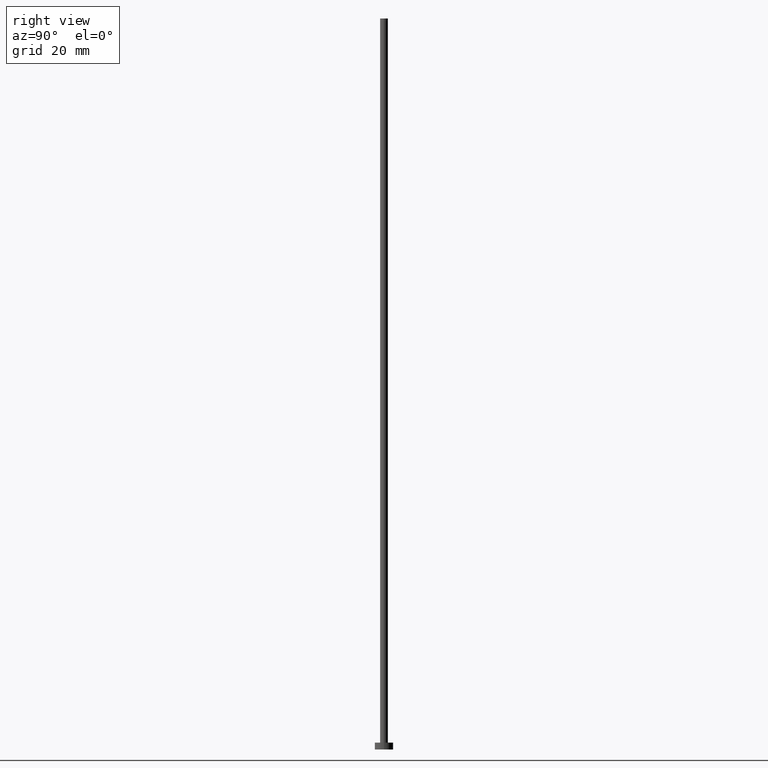
[diagram: clean part render]
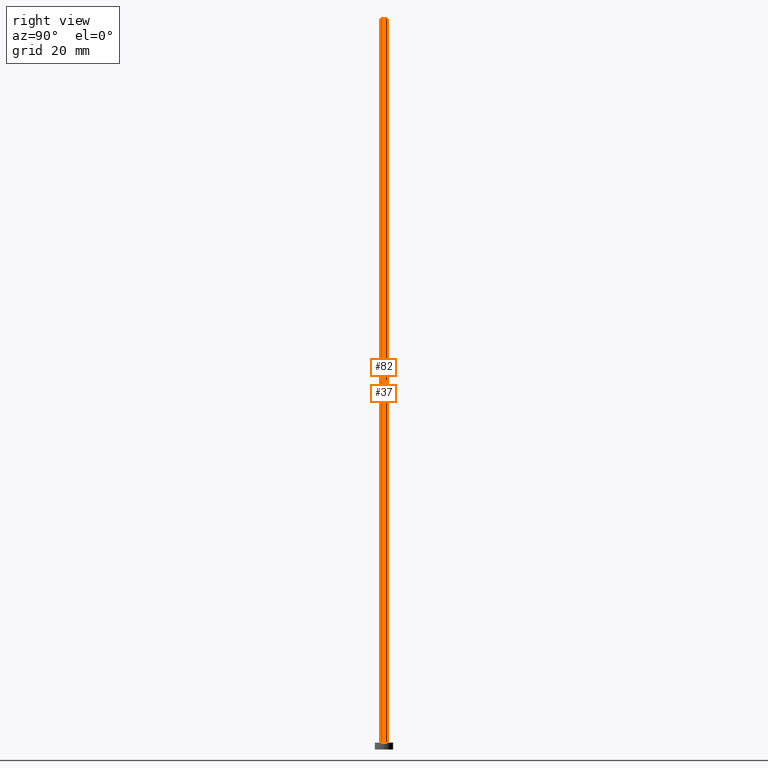
[diagram: same view with one multi-face feature highlighted, each face labeled with its STEP entity id]
A machine part, right view. The highlighted faces form ONE feature: a constant-radius fillet chain: 2 tangent blend faces with common blend radius 0.85 mm. The faces share edges in the B-rep.
Their STEP definitions:
[1] entity #82 (Cylinder):
#1 = DIRECTION ( 'NONE',  ( 1.000000000000000000, 0.000000000000000000, 0.000000000000000000 ) ) ;
#12 = ORIENTED_EDGE ( 'NONE', *, *, #108, .F. ) ;
#22 = CARTESIAN_POINT ( 'NONE',  ( 0.000000000000000000, 0.000000000000000000, 160.0000000000000000 ) ) ;
#23 = DIRECTION ( 'NONE',  ( -1.000000000000000000, 0.000000000000000000, 0.000000000000000000 ) ) ;
#26 = CARTESIAN_POINT ( 'NONE',  ( -0.8499999999999999778, 0.000000000000000000, 1.500000000000000000 ) ) ;
#33 = EDGE_CURVE ( 'NONE', #41, #90, #92, .T. ) ;
#36 = CIRCLE ( 'NONE', #115, 0.8499999999999999778 ) ;
#40 = DIRECTION ( 'NONE',  ( 1.000000000000000000, 0.000000000000000000, 0.000000000000000000 ) ) ;
#41 = VERTEX_POINT ( 'NONE', #241 ) ;
#44 = DIRECTION ( 'NONE',  ( 0.000000000000000000, 0.000000000000000000, 1.000000000000000000 ) ) ;
#56 = EDGE_LOOP ( 'NONE', ( #217, #12, #81, #177 ) ) ;
#73 = CARTESIAN_POINT ( 'NONE',  ( 0.8499999999999999778, 1.040949779275250140E-16, 160.0000000000000000 ) ) ;
#80 = EDGE_CURVE ( 'NONE', #90, #98, #36, .T. ) ;
#81 = ORIENTED_EDGE ( 'NONE', *, *, #33, .T. ) ;
#82 = ADVANCED_FACE ( 'NONE', ( #210 ), #193, .T. ) ;
#90 = VERTEX_POINT ( 'NONE', #26 ) ;
#92 = LINE ( 'NONE', #109, #250 ) ;
#97 = CARTESIAN_POINT ( 'NONE',  ( 0.000000000000000000, 0.000000000000000000, 160.0000000000000000 ) ) ;
#98 = VERTEX_POINT ( 'NONE', #252 ) ;
#101 = DIRECTION ( 'NONE',  ( -0.000000000000000000, -0.000000000000000000, -1.000000000000000000 ) ) ;
#108 = EDGE_CURVE ( 'NONE', #41, #188, #142, .T. ) ;
#109 = CARTESIAN_POINT ( 'NONE',  ( -0.8499999999999999778, 0.000000000000000000, 160.0000000000000000 ) ) ;
#115 = AXIS2_PLACEMENT_3D ( 'NONE', #123, #44, #1 ) ;
#118 = AXIS2_PLACEMENT_3D ( 'NONE', #22, #195, #23 ) ;
#123 = CARTESIAN_POINT ( 'NONE',  ( 0.000000000000000000, 0.000000000000000000, 1.500000000000000000 ) ) ;
#126 = DIRECTION ( 'NONE',  ( -0.000000000000000000, -0.000000000000000000, -1.000000000000000000 ) ) ;
#133 = AXIS2_PLACEMENT_3D ( 'NONE', #97, #175, #40 ) ;
#142 = CIRCLE ( 'NONE', #133, 0.8499999999999999778 ) ;
#157 = CARTESIAN_POINT ( 'NONE',  ( 0.8499999999999999778, 1.040949779275250140E-16, 160.0000000000000000 ) ) ;
#174 = VECTOR ( 'NONE', #101, 1000.000000000000000 ) ;
#175 = DIRECTION ( 'NONE',  ( 0.000000000000000000, 0.000000000000000000, 1.000000000000000000 ) ) ;
#177 = ORIENTED_EDGE ( 'NONE', *, *, #80, .T. ) ;
#181 = EDGE_CURVE ( 'NONE', #188, #98, #196, .T. ) ;
#188 = VERTEX_POINT ( 'NONE', #73 ) ;
#193 = CYLINDRICAL_SURFACE ( 'NONE', #118, 0.8499999999999999778 ) ;
#195 = DIRECTION ( 'NONE',  ( -0.000000000000000000, -0.000000000000000000, -1.000000000000000000 ) ) ;
#196 = LINE ( 'NONE', #157, #174 ) ;
#210 = FACE_OUTER_BOUND ( 'NONE', #56, .T. ) ;
#217 = ORIENTED_EDGE ( 'NONE', *, *, #181, .F. ) ;
#241 = CARTESIAN_POINT ( 'NONE',  ( -0.8499999999999999778, 0.000000000000000000, 160.0000000000000000 ) ) ;
#250 = VECTOR ( 'NONE', #126, 1000.000000000000000 ) ;
#252 = CARTESIAN_POINT ( 'NONE',  ( 0.8499999999999999778, 1.040949779275250140E-16, 1.500000000000000000 ) ) ;
[2] entity #37 (Cylinder):
#17 = EDGE_CURVE ( 'NONE', #188, #41, #99, .T. ) ;
#26 = CARTESIAN_POINT ( 'NONE',  ( -0.8499999999999999778, 0.000000000000000000, 1.500000000000000000 ) ) ;
#33 = EDGE_CURVE ( 'NONE', #41, #90, #92, .T. ) ;
#35 = FACE_OUTER_BOUND ( 'NONE', #46, .T. ) ;
#37 = ADVANCED_FACE ( 'NONE', ( #35 ), #152, .T. ) ;
#41 = VERTEX_POINT ( 'NONE', #241 ) ;
#46 = EDGE_LOOP ( 'NONE', ( #155, #64, #59, #251 ) ) ;
#59 = ORIENTED_EDGE ( 'NONE', *, *, #78, .T. ) ;
#64 = ORIENTED_EDGE ( 'NONE', *, *, #181, .T. ) ;
#73 = CARTESIAN_POINT ( 'NONE',  ( 0.8499999999999999778, 1.040949779275250140E-16, 160.0000000000000000 ) ) ;
#77 = CARTESIAN_POINT ( 'NONE',  ( 0.000000000000000000, 0.000000000000000000, 1.500000000000000000 ) ) ;
#78 = EDGE_CURVE ( 'NONE', #98, #90, #227, .T. ) ;
#90 = VERTEX_POINT ( 'NONE', #26 ) ;
#92 = LINE ( 'NONE', #109, #250 ) ;
#98 = VERTEX_POINT ( 'NONE', #252 ) ;
#99 = CIRCLE ( 'NONE', #137, 0.8499999999999999778 ) ;
#101 = DIRECTION ( 'NONE',  ( -0.000000000000000000, -0.000000000000000000, -1.000000000000000000 ) ) ;
#109 = CARTESIAN_POINT ( 'NONE',  ( -0.8499999999999999778, 0.000000000000000000, 160.0000000000000000 ) ) ;
#126 = DIRECTION ( 'NONE',  ( -0.000000000000000000, -0.000000000000000000, -1.000000000000000000 ) ) ;
#130 = DIRECTION ( 'NONE',  ( -1.000000000000000000, 0.000000000000000000, 0.000000000000000000 ) ) ;
#137 = AXIS2_PLACEMENT_3D ( 'NONE', #171, #150, #249 ) ;
#150 = DIRECTION ( 'NONE',  ( 0.000000000000000000, 0.000000000000000000, 1.000000000000000000 ) ) ;
#152 = CYLINDRICAL_SURFACE ( 'NONE', #192, 0.8499999999999999778 ) ;
#155 = ORIENTED_EDGE ( 'NONE', *, *, #17, .F. ) ;
#157 = CARTESIAN_POINT ( 'NONE',  ( 0.8499999999999999778, 1.040949779275250140E-16, 160.0000000000000000 ) ) ;
#169 = DIRECTION ( 'NONE',  ( -0.000000000000000000, -0.000000000000000000, -1.000000000000000000 ) ) ;
#171 = CARTESIAN_POINT ( 'NONE',  ( 0.000000000000000000, 0.000000000000000000, 160.0000000000000000 ) ) ;
#174 = VECTOR ( 'NONE', #101, 1000.000000000000000 ) ;
#181 = EDGE_CURVE ( 'NONE', #188, #98, #196, .T. ) ;
#188 = VERTEX_POINT ( 'NONE', #73 ) ;
#192 = AXIS2_PLACEMENT_3D ( 'NONE', #230, #169, #130 ) ;
#196 = LINE ( 'NONE', #157, #174 ) ;
#220 = DIRECTION ( 'NONE',  ( 1.000000000000000000, 0.000000000000000000, 0.000000000000000000 ) ) ;
#227 = CIRCLE ( 'NONE', #231, 0.8499999999999999778 ) ;
#229 = DIRECTION ( 'NONE',  ( 0.000000000000000000, 0.000000000000000000, 1.000000000000000000 ) ) ;
#230 = CARTESIAN_POINT ( 'NONE',  ( 0.000000000000000000, 0.000000000000000000, 160.0000000000000000 ) ) ;
#231 = AXIS2_PLACEMENT_3D ( 'NONE', #77, #229, #220 ) ;
#241 = CARTESIAN_POINT ( 'NONE',  ( -0.8499999999999999778, 0.000000000000000000, 160.0000000000000000 ) ) ;
#249 = DIRECTION ( 'NONE',  ( 1.000000000000000000, 0.000000000000000000, 0.000000000000000000 ) ) ;
#250 = VECTOR ( 'NONE', #126, 1000.000000000000000 ) ;
#251 = ORIENTED_EDGE ( 'NONE', *, *, #33, .F. ) ;
#252 = CARTESIAN_POINT ( 'NONE',  ( 0.8499999999999999778, 1.040949779275250140E-16, 1.500000000000000000 ) ) ;